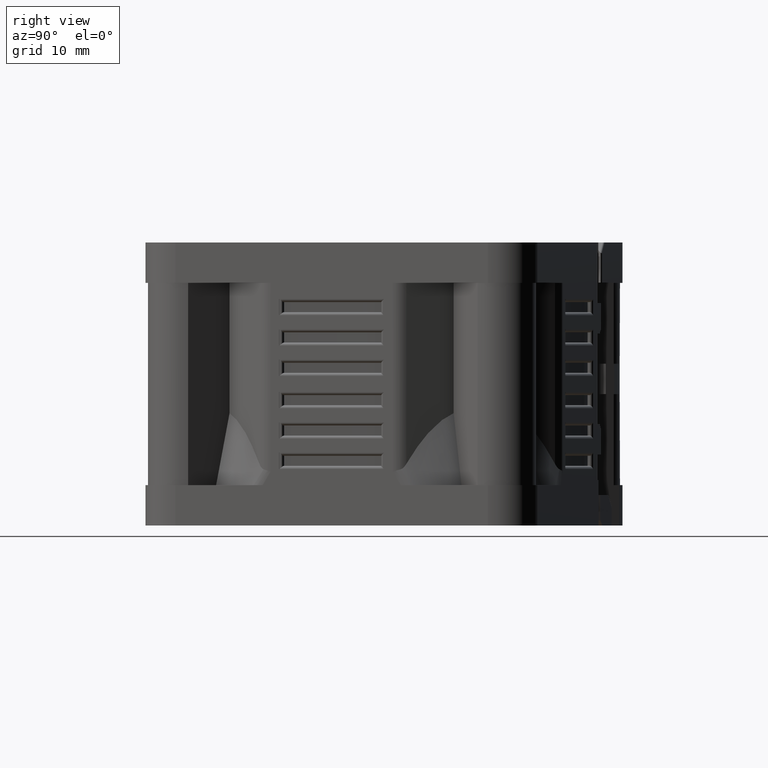
[diagram: clean part render]
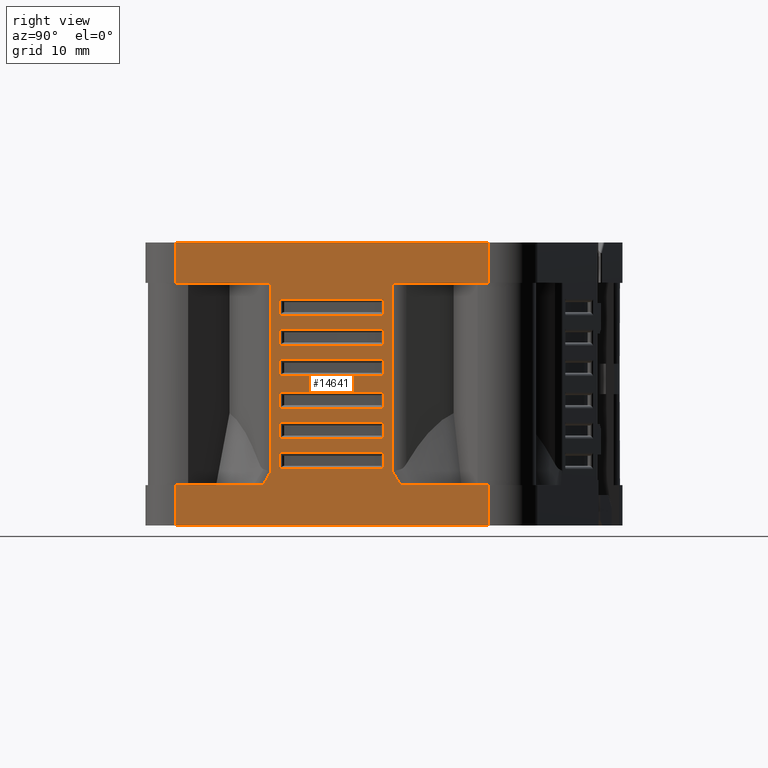
[diagram: same view with one face highlighted and labeled with its STEP entity id]
A machine part, right view. The second image highlights one B-rep face of the part: STEP entity #14641.
In plain terms, the highlighted planar face has unit normal (0.9659, -0.2588, 0).
Its self-contained STEP definition (entity closure, byte-faithful):
#222=DIRECTION('',(2.588190451023E-1,9.659258262891E-1,0.E0));
#223=VECTOR('',#222,9.759683919070E0);
#224=CARTESIAN_POINT('',(1.517741180414E1,-2.063119412267E1,2.4E1));
#225=LINE('',#224,#223);
#272=DIRECTION('',(-1.515676473218E-12,-4.603428749306E-12,-1.E0));
#273=VECTOR('',#272,4.E0);
#274=CARTESIAN_POINT('',(1.517741180415E1,-2.063119412265E1,2.8E1));
#275=LINE('',#274,#273);
#280=CARTESIAN_POINT('',(2.093364006401E1,8.513422053343E-1,5.335014737344E0));
#281=CARTESIAN_POINT('',(2.096710589158E1,9.762383742799E-1,5.135758813627E0));
#282=CARTESIAN_POINT('',(2.103933812172E1,1.245812735679E0,4.693629043993E0));
#283=CARTESIAN_POINT('',(2.110857397761E1,1.504204459554E0,4.245889924995E0));
#284=CARTESIAN_POINT('',(2.114562196151E1,1.642469418005E0,4.000000063457E0));
#286=CARTESIAN_POINT('',(1.749143148057E1,-1.199515512033E1,3.999999993380E0));
#287=CARTESIAN_POINT('',(1.752589999646E1,-1.186651686777E1,4.228775038679E0));
#288=CARTESIAN_POINT('',(1.759492678990E1,-1.160890536715E1,4.675826799935E0));
#289=CARTESIAN_POINT('',(1.766713726098E1,-1.133941222070E1,5.119034185564E0));
#290=CARTESIAN_POINT('',(1.770340539345E1,-1.120405770764E1,5.334979193933E0));
#292=DIRECTION('',(2.588190451070E-1,9.659258262879E-1,0.E0));
#293=VECTOR('',#292,9.759662717329E0);
#294=CARTESIAN_POINT('',(2.093363466241E1,8.513220442426E-1,2.4E1));
#295=LINE('',#294,#293);
#355=DIRECTION('',(-1.270095140171E-12,-5.825118165603E-12,1.E0));
#356=VECTOR('',#355,4.E0);
#357=CARTESIAN_POINT('',(2.345962124748E1,1.027843231877E1,2.4E1));
#358=LINE('',#357,#356);
#382=DIRECTION('',(-2.588190451903E-1,-9.659258262655E-1,5.822090124629E-9));
#383=VECTOR('',#382,8.940606686217E0);
#384=CARTESIAN_POINT('',(2.345962124746E1,1.027843231870E1,4.000000011404E0));
#385=LINE('',#384,#383);
#414=DIRECTION('',(-5.496048045436E-12,-2.345501564057E-11,1.E0));
#415=VECTOR('',#414,4.000000011404E0);
#416=CARTESIAN_POINT('',(2.345962124748E1,1.027843231880E1,0.E0));
#417=LINE('',#416,#415);
#511=DIRECTION('',(2.588190451026E-1,9.659258262890E-1,0.E0));
#512=VECTOR('',#511,3.200000000023E1);
#513=CARTESIAN_POINT('',(1.517741180414E1,-2.063119412267E1,0.E0));
#514=LINE('',#513,#512);
#3082=DIRECTION('',(-2.588190451026E-1,-9.659258262890E-1,0.E0));
#3083=VECTOR('',#3082,3.200000000015E1);
#3084=CARTESIAN_POINT('',(2.345962124747E1,1.027843231875E1,2.8E1));
#3085=LINE('',#3084,#3083);
#5816=DIRECTION('',(-2.229771922996E-12,-7.863931729222E-12,-1.E0));
#5817=VECTOR('',#5816,3.999999999391E0);
#5818=CARTESIAN_POINT('',(1.517741180415E1,-2.063119412264E1,3.999999999391E0));
#5819=LINE('',#5818,#5817);
#5820=DIRECTION('',(-2.588190450976E-1,-9.659258262904E-1,6.723564378300E-10));
#5821=VECTOR('',#5820,8.940685472173E0);
#5822=CARTESIAN_POINT('',(1.749143148057E1,-1.199515512033E1,3.999999993380E0));
#5823=LINE('',#5822,#5821);
#5929=DIRECTION('',(8.126854126060E-8,3.033043474229E-7,-1.E0));
#5930=VECTOR('',#5929,1.866502080607E1);
#5931=CARTESIAN_POINT('',(1.770340387657E1,-1.120406336882E1,2.4E1));
#5932=LINE('',#5931,#5930);
#6886=DIRECTION('',(-2.893974983589E-7,-1.080155780958E-6,9.999999999994E-1));
#6887=VECTOR('',#6886,1.866498526267E1);
#6888=CARTESIAN_POINT('',(2.093364006401E1,8.513422053343E-1,5.335014737344E0));
#6889=LINE('',#6888,#6887);
#7909=DIRECTION('',(-2.588190451036E-1,-9.659258262888E-1,0.E0));
#7910=VECTOR('',#7909,3.585685829319E-1);
#7911=CARTESIAN_POINT('',(2.070431366129E1,-4.515583349458E-3,
1.480450468181E1));
#7912=LINE('',#7911,#7910);
#7970=DIRECTION('',(-2.588190451027E-1,-9.659258262890E-1,0.E0));
#7971=VECTOR('',#7970,9.991480779612E0);
#7972=CARTESIAN_POINT('',(2.061150928305E1,-3.508662380991E-1,
1.480450468181E1));
#7973=LINE('',#7972,#7971);
#7988=DIRECTION('',(-2.588190451042E-1,-9.659258262886E-1,0.E0));
#7989=VECTOR('',#7988,3.585685829247E-1);
#7990=CARTESIAN_POINT('',(1.802552376851E1,-1.000189556600E1,1.480450468181E1));
#7991=LINE('',#7990,#7989);
#7997=DIRECTION('',(-8.570921750106E-13,4.019007349143E-13,1.E0));
#7998=VECTOR('',#7997,1.6E0);
#7999=CARTESIAN_POINT('',(1.793271939027E1,-1.034824622074E1,1.480450468181E1));
#8000=LINE('',#7999,#7998);
#8005=DIRECTION('',(2.588190451036E-1,9.659258262888E-1,0.E0));
#8006=VECTOR('',#8005,3.585685828136E-1);
#8007=CARTESIAN_POINT('',(1.793271939027E1,-1.034824622074E1,1.640450468181E1));
#8008=LINE('',#8007,#8006);
#8074=DIRECTION('',(2.588190451028E-1,9.659258262890E-1,0.E0));
#8075=VECTOR('',#8074,9.991480779644E0);
#8076=CARTESIAN_POINT('',(1.802552376848E1,-1.000189556610E1,1.640450468181E1));
#8077=LINE('',#8076,#8075);
#8092=DIRECTION('',(2.588190451054E-1,9.659258262883E-1,0.E0));
#8093=VECTOR('',#8092,3.585685830106E-1);
#8094=CARTESIAN_POINT('',(2.061150928303E1,-3.508662381751E-1,
1.640450468181E1));
#8095=LINE('',#8094,#8093);
#8101=DIRECTION('',(-2.731148640578E-13,3.502406697997E-14,-1.E0));
#8102=VECTOR('',#8101,1.6E0);
#8103=CARTESIAN_POINT('',(2.070431366129E1,-4.515583349514E-3,
1.640450468181E1));
#8104=LINE('',#8103,#8102);
#8109=DIRECTION('',(-2.588190451031E-1,-9.659258262889E-1,0.E0));
#8110=VECTOR('',#8109,3.585685827042E-1);
#8111=CARTESIAN_POINT('',(2.070431366129E1,-4.515583349388E-3,
1.780450468181E1));
#8112=LINE('',#8111,#8110);
#8170=DIRECTION('',(-2.588190451027E-1,-9.659258262890E-1,0.E0));
#8171=VECTOR('',#8170,9.991480779886E0);
#8172=CARTESIAN_POINT('',(2.061150928311E1,-3.508662378792E-1,
1.780450468181E1));
#8173=LINE('',#8172,#8171);
#8188=DIRECTION('',(-2.588190451030E-1,-9.659258262889E-1,0.E0));
#8189=VECTOR('',#8188,3.585685828783E-1);
#8190=CARTESIAN_POINT('',(1.802552376850E1,-1.000189556604E1,1.780450468181E1));
#8191=LINE('',#8190,#8189);
#8197=DIRECTION('',(-6.394884621841E-13,6.494804694057E-13,1.E0));
#8198=VECTOR('',#8197,1.6E0);
#8199=CARTESIAN_POINT('',(1.793271939027E1,-1.034824622074E1,1.780450468181E1));
#8200=LINE('',#8199,#8198);
#8209=DIRECTION('',(2.588190451027E-1,9.659258262890E-1,0.E0));
#8210=VECTOR('',#8209,3.585685828148E-1);
#8211=CARTESIAN_POINT('',(1.793271939027E1,-1.034824622074E1,1.940450468181E1));
#8212=LINE('',#8211,#8210);
#8274=DIRECTION('',(2.588190451028E-1,9.659258262890E-1,0.E0));
#8275=VECTOR('',#8274,9.991480779886E0);
#8276=CARTESIAN_POINT('',(1.802552376848E1,-1.000189556610E1,1.940450468181E1));
#8277=LINE('',#8276,#8275);
#8292=DIRECTION('',(2.588190451044E-1,9.659258262886E-1,0.E0));
#8293=VECTOR('',#8292,3.585685827675E-1);
#8294=CARTESIAN_POINT('',(2.061150928309E1,-3.508662379402E-1,
1.940450468181E1));
#8295=LINE('',#8294,#8293);
#8301=DIRECTION('',(-3.330669073875E-14,0.E0,-1.E0));
#8302=VECTOR('',#8301,1.6E0);
#8303=CARTESIAN_POINT('',(2.070431366129E1,-4.515583349375E-3,
1.940450468181E1));
#8304=LINE('',#8303,#8302);
#8309=DIRECTION('',(-2.588190451051E-1,-9.659258262884E-1,0.E0));
#8310=VECTOR('',#8309,3.585685829002E-1);
#8311=CARTESIAN_POINT('',(2.070431366129E1,-4.515583349443E-3,
2.080450468181E1));
#8312=LINE('',#8311,#8310);
#8396=DIRECTION('',(2.588190451028E-1,9.659258262890E-1,0.E0));
#8397=VECTOR('',#8396,9.991480779730E0);
#8398=CARTESIAN_POINT('',(1.802552376851E1,-1.000189556598E1,2.240450468181E1));
#8399=LINE('',#8398,#8397);
#8414=DIRECTION('',(2.588190451047E-1,9.659258262885E-1,0.E0));
#8415=VECTOR('',#8414,3.585685828003E-1);
#8416=CARTESIAN_POINT('',(2.061150928309E1,-3.508662379721E-1,
2.240450468181E1));
#8417=LINE('',#8416,#8415);
#8423=DIRECTION('',(-7.149836278586E-13,8.086142432723E-14,-1.E0));
#8424=VECTOR('',#8423,1.6E0);
#8425=CARTESIAN_POINT('',(2.070431366129E1,-4.515583349573E-3,
2.240450468181E1));
#8426=LINE('',#8425,#8424);
#8475=DIRECTION('',(-2.588190451028E-1,-9.659258262890E-1,0.E0));
#8476=VECTOR('',#8475,9.991480779801E0);
#8477=CARTESIAN_POINT('',(2.061150928306E1,-3.508662380684E-1,
2.080450468181E1));
#8478=LINE('',#8477,#8476);
#8479=DIRECTION('',(-2.588190451041E-1,-9.659258262887E-1,0.E0));
#8480=VECTOR('',#8479,3.585685827671E-1);
#8481=CARTESIAN_POINT('',(1.802552376847E1,-1.000189556615E1,2.080450468181E1));
#8482=LINE('',#8481,#8480);
#8488=DIRECTION('',(2.509104035653E-13,-1.176836406103E-13,1.E0));
#8489=VECTOR('',#8488,1.6E0);
#8490=CARTESIAN_POINT('',(1.793271939027E1,-1.034824622074E1,2.080450468181E1));
#8491=LINE('',#8490,#8489);
#8496=DIRECTION('',(2.588190451051E-1,9.659258262884E-1,0.E0));
#8497=VECTOR('',#8496,3.585685829381E-1);
#8498=CARTESIAN_POINT('',(1.793271939027E1,-1.034824622074E1,2.240450468181E1));
#8499=LINE('',#8498,#8497);
#8509=DIRECTION('',(2.588190451028E-1,9.659258262890E-1,0.E0));
#8510=VECTOR('',#8509,9.991482026945E0);
#8511=CARTESIAN_POINT('',(1.802552344571E1,-1.000189677068E1,7.195495318191E0));
#8512=LINE('',#8511,#8510);
#8527=DIRECTION('',(2.588190451034E-1,9.659258262888E-1,0.E0));
#8528=VECTOR('',#8527,3.585685827826E-1);
#8529=CARTESIAN_POINT('',(2.061150928309E1,-3.508662379549E-1,
7.195495318191E0));
#8530=LINE('',#8529,#8528);
#8536=DIRECTION('',(-2.997602166488E-13,2.007075061705E-14,-1.E0));
#8537=VECTOR('',#8536,1.6E0);
#8538=CARTESIAN_POINT('',(2.070431366129E1,-4.515583349438E-3,
7.195495318191E0));
#8539=LINE('',#8538,#8537);
#8544=DIRECTION('',(-2.588190451046E-1,-9.659258262885E-1,0.E0));
#8545=VECTOR('',#8544,3.585685826125E-1);
#8546=CARTESIAN_POINT('',(2.070431366129E1,-4.515583349406E-3,
5.595495318191E0));
#8547=LINE('',#8546,#8545);
#8605=DIRECTION('',(-2.588190451026E-1,-9.659258262890E-1,0.E0));
#8606=VECTOR('',#8605,9.991480780022E0);
#8607=CARTESIAN_POINT('',(2.061150928313E1,-3.508662377905E-1,
5.595495318191E0));
#8608=LINE('',#8607,#8606);
#8623=DIRECTION('',(-2.588190451010E-1,-9.659258262895E-1,0.E0));
#8624=VECTOR('',#8623,3.585685828342E-1);
#8625=CARTESIAN_POINT('',(1.802552376849E1,-1.000189556608E1,5.595495318191E0));
#8626=LINE('',#8625,#8624);
#8632=DIRECTION('',(-1.152411499561E-12,8.837375276016E-13,1.E0));
#8633=VECTOR('',#8632,1.6E0);
#8634=CARTESIAN_POINT('',(1.793271939027E1,-1.034824622074E1,5.595495318191E0));
#8635=LINE('',#8634,#8633);
#8644=DIRECTION('',(2.588190451041E-1,9.659258262886E-1,0.E0));
#8645=VECTOR('',#8644,3.585673357405E-1);
#8646=CARTESIAN_POINT('',(1.793271939027E1,-1.034824622074E1,7.195495318191E0));
#8647=LINE('',#8646,#8645);
#8709=DIRECTION('',(2.588190451028E-1,9.659258262890E-1,0.E0));
#8710=VECTOR('',#8709,9.991480779940E0);
#8711=CARTESIAN_POINT('',(1.802552376846E1,-1.000189556616E1,1.019549531819E1));
#8712=LINE('',#8711,#8710);
#8727=DIRECTION('',(2.588190451046E-1,9.659258262885E-1,0.E0));
#8728=VECTOR('',#8727,3.585685827720E-1);
#8729=CARTESIAN_POINT('',(2.061150928309E1,-3.508662379446E-1,
1.019549531819E1));
#8730=LINE('',#8729,#8728);
#8740=DIRECTION('',(-1.332267629551E-13,0.E0,-1.E0));
#8741=VECTOR('',#8740,1.599999999999E0);
#8742=CARTESIAN_POINT('',(2.070431366129E1,-4.515583349396E-3,
1.019549531819E1));
#8743=LINE('',#8742,#8741);
#8748=DIRECTION('',(-2.588190451032E-1,-9.659258262889E-1,0.E0));
#8749=VECTOR('',#8748,3.585685827043E-1);
#8750=CARTESIAN_POINT('',(2.070431366129E1,-4.515583349394E-3,
8.595495318191E0));
#8751=LINE('',#8750,#8749);
#8805=DIRECTION('',(-2.588190451028E-1,-9.659258262890E-1,0.E0));
#8806=VECTOR('',#8805,9.991480499104E0);
#8807=CARTESIAN_POINT('',(2.061150928311E1,-3.508662378793E-1,
8.595495318191E0));
#8808=LINE('',#8807,#8806);
#8823=DIRECTION('',(-2.588190451047E-1,-9.659258262885E-1,0.E0));
#8824=VECTOR('',#8823,3.585688636597E-1);
#8825=CARTESIAN_POINT('',(1.802552384117E1,-1.000189529483E1,8.595495318191E0));
#8826=LINE('',#8825,#8824);
#8836=DIRECTION('',(1.865174681371E-13,-3.519406988064E-13,1.E0));
#8837=VECTOR('',#8836,1.599999999999E0);
#8838=CARTESIAN_POINT('',(1.793271939027E1,-1.034824622074E1,8.595495318191E0));
#8839=LINE('',#8838,#8837);
#8840=DIRECTION('',(2.588190451030E-1,9.659258262889E-1,0.E0));
#8841=VECTOR('',#8840,3.585685827566E-1);
#8842=CARTESIAN_POINT('',(1.793271939027E1,-1.034824622074E1,1.019549531819E1));
#8843=LINE('',#8842,#8841);
#8909=DIRECTION('',(2.588190451028E-1,9.659258262890E-1,0.E0));
#8910=VECTOR('',#8909,9.991480779997E0);
#8911=CARTESIAN_POINT('',(1.802552376845E1,-1.000189556621E1,1.319549531819E1));
#8912=LINE('',#8911,#8910);
#8927=DIRECTION('',(2.588190451045E-1,9.659258262885E-1,0.E0));
#8928=VECTOR('',#8927,3.585685827713E-1);
#8929=CARTESIAN_POINT('',(2.061150928309E1,-3.508662379438E-1,
1.319549531819E1));
#8930=LINE('',#8929,#8928);
#8936=DIRECTION('',(-1.310063169058E-13,0.E0,-1.E0));
#8937=VECTOR('',#8936,1.6E0);
#8938=CARTESIAN_POINT('',(2.070431366129E1,-4.515583349389E-3,
1.319549531819E1));
#8939=LINE('',#8938,#8937);
#8944=DIRECTION('',(-2.588190451032E-1,-9.659258262889E-1,0.E0));
#8945=VECTOR('',#8944,3.585685827056E-1);
#8946=CARTESIAN_POINT('',(2.070431366129E1,-4.515583349387E-3,
1.159549531819E1));
#8947=LINE('',#8946,#8945);
#9061=DIRECTION('',(2.588190451029E-1,9.659258262890E-1,0.E0));
#9062=VECTOR('',#9061,3.585685826999E-1);
#9063=CARTESIAN_POINT('',(1.793271939027E1,-1.034824622074E1,1.319549531819E1));
#9064=LINE('',#9063,#9062);
#9070=DIRECTION('',(-1.270095140171E-12,5.972999872483E-13,1.E0));
#9071=VECTOR('',#9070,1.6E0);
#9072=CARTESIAN_POINT('',(1.793271939027E1,-1.034824622074E1,1.159549531819E1));
#9073=LINE('',#9072,#9071);
#9078=DIRECTION('',(-2.588190451026E-1,-9.659258262890E-1,0.E0));
#9079=VECTOR('',#9078,3.585685830323E-1);
#9080=CARTESIAN_POINT('',(1.802552376854E1,-1.000189556589E1,1.159549531819E1));
#9081=LINE('',#9080,#9079);
#9105=DIRECTION('',(-2.588190451026E-1,-9.659258262890E-1,0.E0));
#9106=VECTOR('',#9105,9.991480779731E0);
#9107=CARTESIAN_POINT('',(2.061150928311E1,-3.508662378805E-1,
1.159549531819E1));
#9108=LINE('',#9107,#9106);
#11827=CARTESIAN_POINT('',(1.517741180414E1,-2.063119412265E1,2.4E1));
#11828=VERTEX_POINT('',#11827);
#11829=CARTESIAN_POINT('',(1.770340387657E1,-1.120406336882E1,2.4E1));
#11830=VERTEX_POINT('',#11829);
#11849=CARTESIAN_POINT('',(1.517741180415E1,-2.063119412265E1,2.8E1));
#11850=VERTEX_POINT('',#11849);
#11851=CARTESIAN_POINT('',(2.093363466241E1,8.513220442426E-1,2.4E1));
#11852=CARTESIAN_POINT('',(2.345962124748E1,1.027843231877E1,2.4E1));
#11853=VERTEX_POINT('',#11851);
#11854=VERTEX_POINT('',#11852);
#11855=CARTESIAN_POINT('',(2.093364006401E1,8.513422053343E-1,
5.335014737344E0));
#11856=VERTEX_POINT('',#11855);
#11857=VERTEX_POINT('',#284);
#11858=CARTESIAN_POINT('',(2.345962124746E1,1.027843231870E1,4.000000011404E0));
#11859=VERTEX_POINT('',#11858);
#11860=CARTESIAN_POINT('',(2.345962124748E1,1.027843231880E1,0.E0));
#11861=VERTEX_POINT('',#11860);
#11862=CARTESIAN_POINT('',(1.517741180414E1,-2.063119412267E1,0.E0));
#11863=VERTEX_POINT('',#11862);
#11864=CARTESIAN_POINT('',(1.517741180415E1,-2.063119412264E1,
3.999999999391E0));
#11865=VERTEX_POINT('',#11864);
#11866=CARTESIAN_POINT('',(1.749143148057E1,-1.199515512033E1,
3.999999993380E0));
#11867=VERTEX_POINT('',#11866);
#11868=VERTEX_POINT('',#290);
#11869=CARTESIAN_POINT('',(2.345962124747E1,1.027843231875E1,2.8E1));
#11870=VERTEX_POINT('',#11869);
#11871=CARTESIAN_POINT('',(2.070431366129E1,-4.515583349458E-3,
1.480450468181E1));
#11872=CARTESIAN_POINT('',(2.061150928305E1,-3.508662380991E-1,
1.480450468181E1));
#11873=VERTEX_POINT('',#11871);
#11874=VERTEX_POINT('',#11872);
#11875=CARTESIAN_POINT('',(2.070431366129E1,-4.515583349514E-3,
1.640450468181E1));
#11876=VERTEX_POINT('',#11875);
#11877=CARTESIAN_POINT('',(2.061150928303E1,-3.508662381751E-1,
1.640450468181E1));
#11878=VERTEX_POINT('',#11877);
#11879=CARTESIAN_POINT('',(1.802552376848E1,-1.000189556610E1,
1.640450468181E1));
#11880=VERTEX_POINT('',#11879);
#11881=CARTESIAN_POINT('',(1.793271939027E1,-1.034824622074E1,
1.640450468181E1));
#11882=VERTEX_POINT('',#11881);
#11883=CARTESIAN_POINT('',(1.793271939027E1,-1.034824622074E1,
1.480450468181E1));
#11884=VERTEX_POINT('',#11883);
#11885=CARTESIAN_POINT('',(1.802552376851E1,-1.000189556600E1,
1.480450468181E1));
#11886=VERTEX_POINT('',#11885);
#11887=CARTESIAN_POINT('',(2.070431366129E1,-4.515583349388E-3,
1.780450468181E1));
#11888=CARTESIAN_POINT('',(2.061150928311E1,-3.508662378792E-1,
1.780450468181E1));
#11889=VERTEX_POINT('',#11887);
#11890=VERTEX_POINT('',#11888);
#11891=CARTESIAN_POINT('',(2.070431366129E1,-4.515583349375E-3,
1.940450468181E1));
#11892=VERTEX_POINT('',#11891);
#11893=CARTESIAN_POINT('',(2.061150928309E1,-3.508662379402E-1,
1.940450468181E1));
#11894=VERTEX_POINT('',#11893);
#11895=CARTESIAN_POINT('',(1.802552376848E1,-1.000189556610E1,
1.940450468181E1));
#11896=VERTEX_POINT('',#11895);
#11897=CARTESIAN_POINT('',(1.793271939027E1,-1.034824622074E1,
1.940450468181E1));
#11898=VERTEX_POINT('',#11897);
#11899=CARTESIAN_POINT('',(1.793271939027E1,-1.034824622074E1,
1.780450468181E1));
#11900=VERTEX_POINT('',#11899);
#11901=CARTESIAN_POINT('',(1.802552376850E1,-1.000189556604E1,
1.780450468181E1));
#11902=VERTEX_POINT('',#11901);
#11903=CARTESIAN_POINT('',(2.070431366129E1,-4.515583349443E-3,
2.080450468181E1));
#11904=CARTESIAN_POINT('',(2.061150928306E1,-3.508662380684E-1,
2.080450468181E1));
#11905=VERTEX_POINT('',#11903);
#11906=VERTEX_POINT('',#11904);
#11907=CARTESIAN_POINT('',(2.070431366129E1,-4.515583349573E-3,
2.240450468181E1));
#11908=VERTEX_POINT('',#11907);
#11909=CARTESIAN_POINT('',(2.061150928309E1,-3.508662379721E-1,
2.240450468181E1));
#11910=VERTEX_POINT('',#11909);
#11911=CARTESIAN_POINT('',(1.802552376851E1,-1.000189556598E1,
2.240450468181E1));
#11912=VERTEX_POINT('',#11911);
#11913=CARTESIAN_POINT('',(1.793271939027E1,-1.034824622074E1,
2.240450468181E1));
#11914=VERTEX_POINT('',#11913);
#11915=CARTESIAN_POINT('',(1.793271939027E1,-1.034824622074E1,
2.080450468181E1));
#11916=VERTEX_POINT('',#11915);
#11917=CARTESIAN_POINT('',(1.802552376847E1,-1.000189556615E1,
2.080450468181E1));
#11918=VERTEX_POINT('',#11917);
#11919=CARTESIAN_POINT('',(1.802552344571E1,-1.000189677068E1,
7.195495318191E0));
#11920=CARTESIAN_POINT('',(2.061150928309E1,-3.508662379549E-1,
7.195495318191E0));
#11921=VERTEX_POINT('',#11919);
#11922=VERTEX_POINT('',#11920);
#11923=CARTESIAN_POINT('',(1.793271939027E1,-1.034824622074E1,
7.195495318191E0));
#11924=VERTEX_POINT('',#11923);
#11925=CARTESIAN_POINT('',(1.793271939027E1,-1.034824622074E1,
5.595495318191E0));
#11926=VERTEX_POINT('',#11925);
#11927=CARTESIAN_POINT('',(1.802552376849E1,-1.000189556608E1,
5.595495318191E0));
#11928=VERTEX_POINT('',#11927);
#11929=CARTESIAN_POINT('',(2.061150928313E1,-3.508662377905E-1,
5.595495318191E0));
#11930=VERTEX_POINT('',#11929);
#11931=CARTESIAN_POINT('',(2.070431366129E1,-4.515583349406E-3,
5.595495318191E0));
#11932=VERTEX_POINT('',#11931);
#11933=CARTESIAN_POINT('',(2.070431366129E1,-4.515583349438E-3,
7.195495318191E0));
#11934=VERTEX_POINT('',#11933);
#11935=CARTESIAN_POINT('',(1.802552376846E1,-1.000189556616E1,
1.019549531819E1));
#11936=CARTESIAN_POINT('',(2.061150928309E1,-3.508662379446E-1,
1.019549531819E1));
#11937=VERTEX_POINT('',#11935);
#11938=VERTEX_POINT('',#11936);
#11939=CARTESIAN_POINT('',(1.793271939027E1,-1.034824622074E1,
1.019549531819E1));
#11940=VERTEX_POINT('',#11939);
#11941=CARTESIAN_POINT('',(1.793271939027E1,-1.034824622074E1,
8.595495318191E0));
#11942=VERTEX_POINT('',#11941);
#11943=CARTESIAN_POINT('',(1.802552384117E1,-1.000189529483E1,
8.595495318191E0));
#11944=VERTEX_POINT('',#11943);
#11945=CARTESIAN_POINT('',(2.061150928311E1,-3.508662378793E-1,
8.595495318191E0));
#11946=VERTEX_POINT('',#11945);
#11947=CARTESIAN_POINT('',(2.070431366129E1,-4.515583349394E-3,
8.595495318191E0));
#11948=VERTEX_POINT('',#11947);
#11949=CARTESIAN_POINT('',(2.070431366129E1,-4.515583349396E-3,
1.019549531819E1));
#11950=VERTEX_POINT('',#11949);
#11951=CARTESIAN_POINT('',(1.802552376845E1,-1.000189556621E1,
1.319549531819E1));
#11952=CARTESIAN_POINT('',(2.061150928309E1,-3.508662379438E-1,
1.319549531819E1));
#11953=VERTEX_POINT('',#11951);
#11954=VERTEX_POINT('',#11952);
#11955=CARTESIAN_POINT('',(1.793271939027E1,-1.034824622074E1,
1.319549531819E1));
#11956=VERTEX_POINT('',#11955);
#11957=CARTESIAN_POINT('',(1.793271939027E1,-1.034824622074E1,
1.159549531819E1));
#11958=VERTEX_POINT('',#11957);
#11959=CARTESIAN_POINT('',(1.802552376854E1,-1.000189556589E1,
1.159549531819E1));
#11960=VERTEX_POINT('',#11959);
#11961=CARTESIAN_POINT('',(2.061150928311E1,-3.508662378805E-1,
1.159549531819E1));
#11962=VERTEX_POINT('',#11961);
#11963=CARTESIAN_POINT('',(2.070431366129E1,-4.515583349387E-3,
1.159549531819E1));
#11964=VERTEX_POINT('',#11963);
#11965=CARTESIAN_POINT('',(2.070431366129E1,-4.515583349389E-3,
1.319549531819E1));
#11966=VERTEX_POINT('',#11965);
#14500=CARTESIAN_POINT('',(1.414213562373E1,-2.449489742783E1,0.E0));
#14501=DIRECTION('',(9.659258262891E-1,-2.588190451025E-1,0.E0));
#14502=DIRECTION('',(0.E0,0.E0,-1.E0));
#14503=AXIS2_PLACEMENT_3D('',#14500,#14501,#14502);
#14504=PLANE('',#14503);
#14506=ORIENTED_EDGE('',*,*,#14505,.F.);
#14508=ORIENTED_EDGE('',*,*,#14507,.F.);
#14510=ORIENTED_EDGE('',*,*,#14509,.T.);
#14512=ORIENTED_EDGE('',*,*,#14511,.F.);
#14514=ORIENTED_EDGE('',*,*,#14513,.F.);
#14516=ORIENTED_EDGE('',*,*,#14515,.F.);
#14518=ORIENTED_EDGE('',*,*,#14517,.F.);
#14520=ORIENTED_EDGE('',*,*,#14519,.F.);
#14522=ORIENTED_EDGE('',*,*,#14521,.T.);
#14524=ORIENTED_EDGE('',*,*,#14523,.F.);
#14525=ORIENTED_EDGE('',*,*,#14461,.F.);
#14526=ORIENTED_EDGE('',*,*,#14491,.F.);
#14528=ORIENTED_EDGE('',*,*,#14527,.F.);
#14530=ORIENTED_EDGE('',*,*,#14529,.F.);
#14531=EDGE_LOOP('',(#14506,#14508,#14510,#14512,#14514,#14516,#14518,#14520,
#14522,#14524,#14525,#14526,#14528,#14530));
#14532=FACE_OUTER_BOUND('',#14531,.F.);
#14534=ORIENTED_EDGE('',*,*,#14533,.F.);
#14536=ORIENTED_EDGE('',*,*,#14535,.F.);
#14538=ORIENTED_EDGE('',*,*,#14537,.F.);
#14540=ORIENTED_EDGE('',*,*,#14539,.F.);
#14542=ORIENTED_EDGE('',*,*,#14541,.F.);
#14544=ORIENTED_EDGE('',*,*,#14543,.F.);
#14546=ORIENTED_EDGE('',*,*,#14545,.F.);
#14548=ORIENTED_EDGE('',*,*,#14547,.F.);
#14549=EDGE_LOOP('',(#14534,#14536,#14538,#14540,#14542,#14544,#14546,#14548));
#14550=FACE_BOUND('',#14549,.F.);
#14552=ORIENTED_EDGE('',*,*,#14551,.F.);
#14554=ORIENTED_EDGE('',*,*,#14553,.F.);
#14556=ORIENTED_EDGE('',*,*,#14555,.F.);
#14558=ORIENTED_EDGE('',*,*,#14557,.F.);
#14560=ORIENTED_EDGE('',*,*,#14559,.F.);
#14562=ORIENTED_EDGE('',*,*,#14561,.F.);
#14564=ORIENTED_EDGE('',*,*,#14563,.F.);
#14566=ORIENTED_EDGE('',*,*,#14565,.F.);
#14567=EDGE_LOOP('',(#14552,#14554,#14556,#14558,#14560,#14562,#14564,#14566));
#14568=FACE_BOUND('',#14567,.F.);
#14570=ORIENTED_EDGE('',*,*,#14569,.F.);
#14572=ORIENTED_EDGE('',*,*,#14571,.F.);
#14574=ORIENTED_EDGE('',*,*,#14573,.F.);
#14576=ORIENTED_EDGE('',*,*,#14575,.F.);
#14578=ORIENTED_EDGE('',*,*,#14577,.F.);
#14580=ORIENTED_EDGE('',*,*,#14579,.F.);
#14582=ORIENTED_EDGE('',*,*,#14581,.F.);
#14584=ORIENTED_EDGE('',*,*,#14583,.F.);
#14585=EDGE_LOOP('',(#14570,#14572,#14574,#14576,#14578,#14580,#14582,#14584));
#14586=FACE_BOUND('',#14585,.F.);
#14588=ORIENTED_EDGE('',*,*,#14587,.F.);
#14590=ORIENTED_EDGE('',*,*,#14589,.F.);
#14592=ORIENTED_EDGE('',*,*,#14591,.F.);
#14594=ORIENTED_EDGE('',*,*,#14593,.F.);
#14596=ORIENTED_EDGE('',*,*,#14595,.F.);
#14598=ORIENTED_EDGE('',*,*,#14597,.F.);
#14600=ORIENTED_EDGE('',*,*,#14599,.F.);
#14602=ORIENTED_EDGE('',*,*,#14601,.F.);
#14603=EDGE_LOOP('',(#14588,#14590,#14592,#14594,#14596,#14598,#14600,#14602));
#14604=FACE_BOUND('',#14603,.F.);
#14606=ORIENTED_EDGE('',*,*,#14605,.F.);
#14608=ORIENTED_EDGE('',*,*,#14607,.F.);
#14610=ORIENTED_EDGE('',*,*,#14609,.F.);
#14612=ORIENTED_EDGE('',*,*,#14611,.F.);
#14614=ORIENTED_EDGE('',*,*,#14613,.F.);
#14616=ORIENTED_EDGE('',*,*,#14615,.F.);
#14618=ORIENTED_EDGE('',*,*,#14617,.F.);
#14620=ORIENTED_EDGE('',*,*,#14619,.F.);
#14621=EDGE_LOOP('',(#14606,#14608,#14610,#14612,#14614,#14616,#14618,#14620));
#14622=FACE_BOUND('',#14621,.F.);
#14624=ORIENTED_EDGE('',*,*,#14623,.F.);
#14626=ORIENTED_EDGE('',*,*,#14625,.F.);
#14628=ORIENTED_EDGE('',*,*,#14627,.F.);
#14630=ORIENTED_EDGE('',*,*,#14629,.F.);
#14632=ORIENTED_EDGE('',*,*,#14631,.F.);
#14634=ORIENTED_EDGE('',*,*,#14633,.F.);
#14636=ORIENTED_EDGE('',*,*,#14635,.F.);
#14638=ORIENTED_EDGE('',*,*,#14637,.F.);
#14639=EDGE_LOOP('',(#14624,#14626,#14628,#14630,#14632,#14634,#14636,#14638));
#14640=FACE_BOUND('',#14639,.F.);
#14641=ADVANCED_FACE('',(#14532,#14550,#14568,#14586,#14604,#14622,#14640),
#14504,.T.);
#285=B_SPLINE_CURVE_WITH_KNOTS('',3,(#280,#281,#282,#283,#284),.UNSPECIFIED.,
.F.,.F.,(4,1,4),(0.E0,4.543809098336E-1,1.E0),.UNSPECIFIED.);
#291=B_SPLINE_CURVE_WITH_KNOTS('',3,(#286,#287,#288,#289,#290),.UNSPECIFIED.,
.F.,.F.,(4,1,4),(0.E0,5.088045587205E-1,1.E0),.UNSPECIFIED.);
#14461=EDGE_CURVE('',#11828,#11830,#225,.T.);
#14491=EDGE_CURVE('',#11850,#11828,#275,.T.);
#14505=EDGE_CURVE('',#11853,#11854,#295,.T.);
#14507=EDGE_CURVE('',#11856,#11853,#6889,.T.);
#14509=EDGE_CURVE('',#11856,#11857,#285,.T.);
#14511=EDGE_CURVE('',#11859,#11857,#385,.T.);
#14513=EDGE_CURVE('',#11861,#11859,#417,.T.);
#14515=EDGE_CURVE('',#11863,#11861,#514,.T.);
#14517=EDGE_CURVE('',#11865,#11863,#5819,.T.);
#14519=EDGE_CURVE('',#11867,#11865,#5823,.T.);
#14521=EDGE_CURVE('',#11867,#11868,#291,.T.);
#14523=EDGE_CURVE('',#11830,#11868,#5932,.T.);
#14527=EDGE_CURVE('',#11870,#11850,#3085,.T.);
#14529=EDGE_CURVE('',#11854,#11870,#358,.T.);
#14533=EDGE_CURVE('',#11873,#11874,#7912,.T.);
#14535=EDGE_CURVE('',#11876,#11873,#8104,.T.);
#14537=EDGE_CURVE('',#11878,#11876,#8095,.T.);
#14539=EDGE_CURVE('',#11880,#11878,#8077,.T.);
#14541=EDGE_CURVE('',#11882,#11880,#8008,.T.);
#14543=EDGE_CURVE('',#11884,#11882,#8000,.T.);
#14545=EDGE_CURVE('',#11886,#11884,#7991,.T.);
#14547=EDGE_CURVE('',#11874,#11886,#7973,.T.);
#14551=EDGE_CURVE('',#11889,#11890,#8112,.T.);
#14553=EDGE_CURVE('',#11892,#11889,#8304,.T.);
#14555=EDGE_CURVE('',#11894,#11892,#8295,.T.);
#14557=EDGE_CURVE('',#11896,#11894,#8277,.T.);
#14559=EDGE_CURVE('',#11898,#11896,#8212,.T.);
#14561=EDGE_CURVE('',#11900,#11898,#8200,.T.);
#14563=EDGE_CURVE('',#11902,#11900,#8191,.T.);
#14565=EDGE_CURVE('',#11890,#11902,#8173,.T.);
#14569=EDGE_CURVE('',#11905,#11906,#8312,.T.);
#14571=EDGE_CURVE('',#11908,#11905,#8426,.T.);
#14573=EDGE_CURVE('',#11910,#11908,#8417,.T.);
#14575=EDGE_CURVE('',#11912,#11910,#8399,.T.);
#14577=EDGE_CURVE('',#11914,#11912,#8499,.T.);
#14579=EDGE_CURVE('',#11916,#11914,#8491,.T.);
#14581=EDGE_CURVE('',#11918,#11916,#8482,.T.);
#14583=EDGE_CURVE('',#11906,#11918,#8478,.T.);
#14587=EDGE_CURVE('',#11921,#11922,#8512,.T.);
#14589=EDGE_CURVE('',#11924,#11921,#8647,.T.);
#14591=EDGE_CURVE('',#11926,#11924,#8635,.T.);
#14593=EDGE_CURVE('',#11928,#11926,#8626,.T.);
#14595=EDGE_CURVE('',#11930,#11928,#8608,.T.);
#14597=EDGE_CURVE('',#11932,#11930,#8547,.T.);
#14599=EDGE_CURVE('',#11934,#11932,#8539,.T.);
#14601=EDGE_CURVE('',#11922,#11934,#8530,.T.);
#14605=EDGE_CURVE('',#11937,#11938,#8712,.T.);
#14607=EDGE_CURVE('',#11940,#11937,#8843,.T.);
#14609=EDGE_CURVE('',#11942,#11940,#8839,.T.);
#14611=EDGE_CURVE('',#11944,#11942,#8826,.T.);
#14613=EDGE_CURVE('',#11946,#11944,#8808,.T.);
#14615=EDGE_CURVE('',#11948,#11946,#8751,.T.);
#14617=EDGE_CURVE('',#11950,#11948,#8743,.T.);
#14619=EDGE_CURVE('',#11938,#11950,#8730,.T.);
#14623=EDGE_CURVE('',#11953,#11954,#8912,.T.);
#14625=EDGE_CURVE('',#11956,#11953,#9064,.T.);
#14627=EDGE_CURVE('',#11958,#11956,#9073,.T.);
#14629=EDGE_CURVE('',#11960,#11958,#9081,.T.);
#14631=EDGE_CURVE('',#11962,#11960,#9108,.T.);
#14633=EDGE_CURVE('',#11964,#11962,#8947,.T.);
#14635=EDGE_CURVE('',#11966,#11964,#8939,.T.);
#14637=EDGE_CURVE('',#11954,#11966,#8930,.T.);